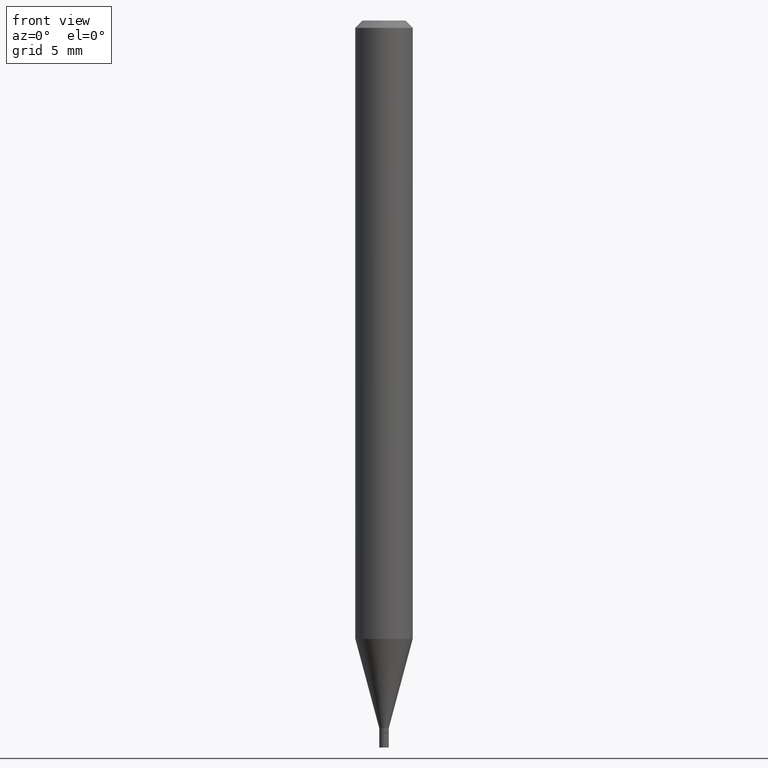
[diagram: clean part render]
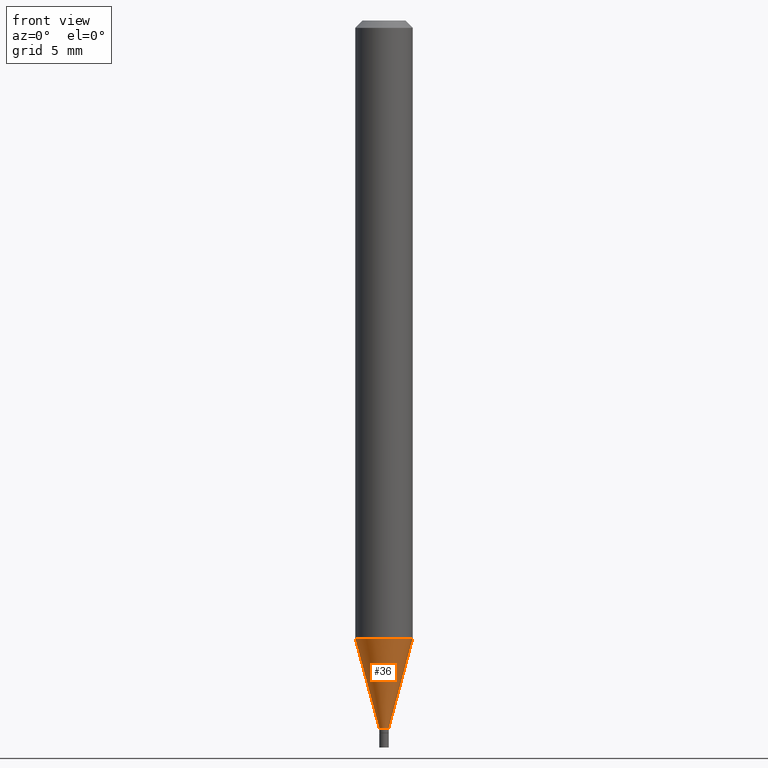
[diagram: same view with one face highlighted and labeled with its STEP entity id]
A machine part, front view. The second image highlights one B-rep face of the part: STEP entity #36.
In plain terms, the highlighted conical surface has half-angle 15 deg.
Its self-contained STEP definition (entity closure, byte-faithful):
#4 = AXIS2_PLACEMENT_3D ( 'NONE', #145, #296, #348 ) ;
#8 = EDGE_CURVE ( 'NONE', #49, #388, #291, .T. ) ;
#9 = CARTESIAN_POINT ( 'NONE',  ( 0.05904999999999999832, -4.855194944695011199E-15, -1.272483100267611356 ) ) ;
#32 = DIRECTION ( 'NONE',  ( -2.445468806185136597E-29, 3.491481338843145583E-15, 1.000000000000000000 ) ) ;
#36 = ADVANCED_FACE ( 'NONE', ( #38 ), #87, .T. ) ;
#38 = FACE_OUTER_BOUND ( 'NONE', #464, .T. ) ;
#41 = CARTESIAN_POINT ( 'NONE',  ( -0.05904999999999999832, -4.023275513111297575E-15, -1.272483100267611356 ) ) ;
#49 = VERTEX_POINT ( 'NONE', #41 ) ;
#77 = CARTESIAN_POINT ( 'NONE',  ( 0.009849999999999924788, -5.152728159864713460E-15, -1.456099999999999728 ) ) ;
#87 = CONICAL_SURFACE ( 'NONE', #276, 0.009849999999999924788, 0.2617993877991501850 ) ;
#93 = VERTEX_POINT ( 'NONE', #109 ) ;
#99 = ORIENTED_EDGE ( 'NONE', *, *, #152, .T. ) ;
#101 = ORIENTED_EDGE ( 'NONE', *, *, #158, .F. ) ;
#104 = AXIS2_PLACEMENT_3D ( 'NONE', #317, #32, #435 ) ;
#109 = CARTESIAN_POINT ( 'NONE',  ( 0.009849999999999924788, -5.152728159864713460E-15, -1.456099999999999728 ) ) ;
#123 = EDGE_CURVE ( 'NONE', #93, #388, #265, .T. ) ;
#136 = ORIENTED_EDGE ( 'NONE', *, *, #123, .T. ) ;
#139 = VERTEX_POINT ( 'NONE', #154 ) ;
#145 = CARTESIAN_POINT ( 'NONE',  ( 3.560847128686176768E-29, -5.083945977489503852E-15, -1.456099999999999728 ) ) ;
#152 = EDGE_CURVE ( 'NONE', #139, #93, #380, .T. ) ;
#154 = CARTESIAN_POINT ( 'NONE',  ( -0.009849999999999924788, -4.518616515564216084E-15, -1.456099999999999728 ) ) ;
#158 = EDGE_CURVE ( 'NONE', #139, #49, #455, .T. ) ;
#165 = VECTOR ( 'NONE', #273, 39.37007874015748143 ) ;
#226 = CARTESIAN_POINT ( 'NONE',  ( 3.560847128686176768E-29, -5.083945977489503852E-15, -1.456099999999999728 ) ) ;
#227 = DIRECTION ( 'NONE',  ( 0.2588190451025214611, 1.565188264969620982E-15, 0.9659258262890679791 ) ) ;
#257 = DIRECTION ( 'NONE',  ( 1.000000000000000000, -6.982962677686282488E-15, 0.000000000000000000 ) ) ;
#261 = DIRECTION ( 'NONE',  ( -2.445468806185136597E-29, 3.491481338843145583E-15, 1.000000000000000000 ) ) ;
#265 = LINE ( 'NONE', #77, #389 ) ;
#271 = CARTESIAN_POINT ( 'NONE',  ( -0.009849999999999924788, -5.013957518017134593E-15, -1.456099999999999728 ) ) ;
#273 = DIRECTION ( 'NONE',  ( -0.2588190451025214611, 5.211531920934550253E-15, 0.9659258262890679791 ) ) ;
#276 = AXIS2_PLACEMENT_3D ( 'NONE', #226, #261, #257 ) ;
#291 = CIRCLE ( 'NONE', #104, 0.05904999999999999832 ) ;
#296 = DIRECTION ( 'NONE',  ( -2.445468806185136597E-29, 3.491481338843145583E-15, 1.000000000000000000 ) ) ;
#317 = CARTESIAN_POINT ( 'NONE',  ( 3.111817728102196803E-29, -4.442850998577635490E-15, -1.272483100267611356 ) ) ;
#348 = DIRECTION ( 'NONE',  ( 1.000000000000000000, -6.982962677686282488E-15, 0.000000000000000000 ) ) ;
#379 = ORIENTED_EDGE ( 'NONE', *, *, #8, .F. ) ;
#380 = CIRCLE ( 'NONE', #4, 0.009849999999999924788 ) ;
#388 = VERTEX_POINT ( 'NONE', #9 ) ;
#389 = VECTOR ( 'NONE', #227, 39.37007874015748143 ) ;
#435 = DIRECTION ( 'NONE',  ( 1.000000000000000000, -6.982962677686273021E-15, 0.000000000000000000 ) ) ;
#455 = LINE ( 'NONE', #271, #165 ) ;
#464 = EDGE_LOOP ( 'NONE', ( #101, #99, #136, #379 ) ) ;